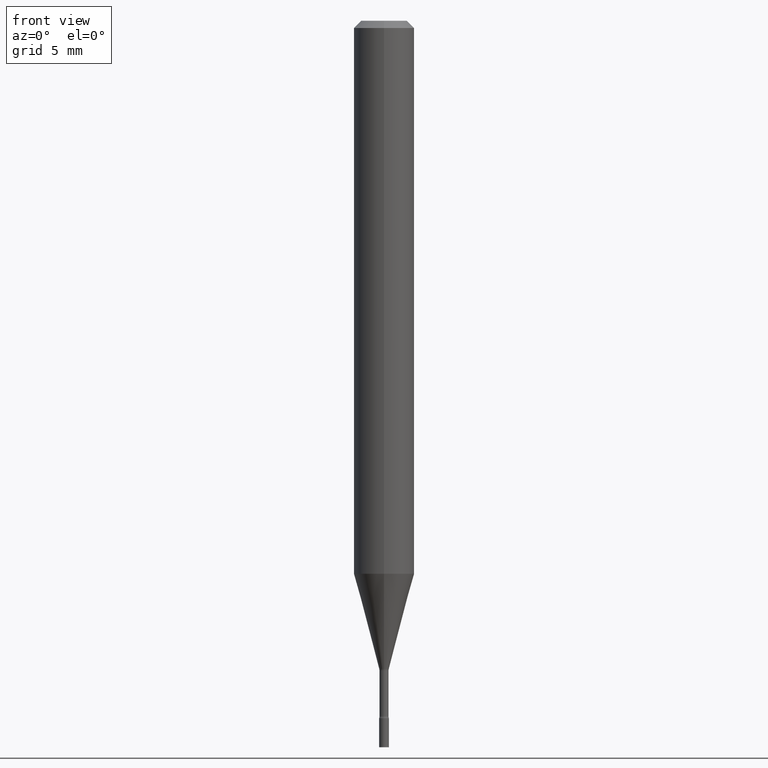
[diagram: clean part render]
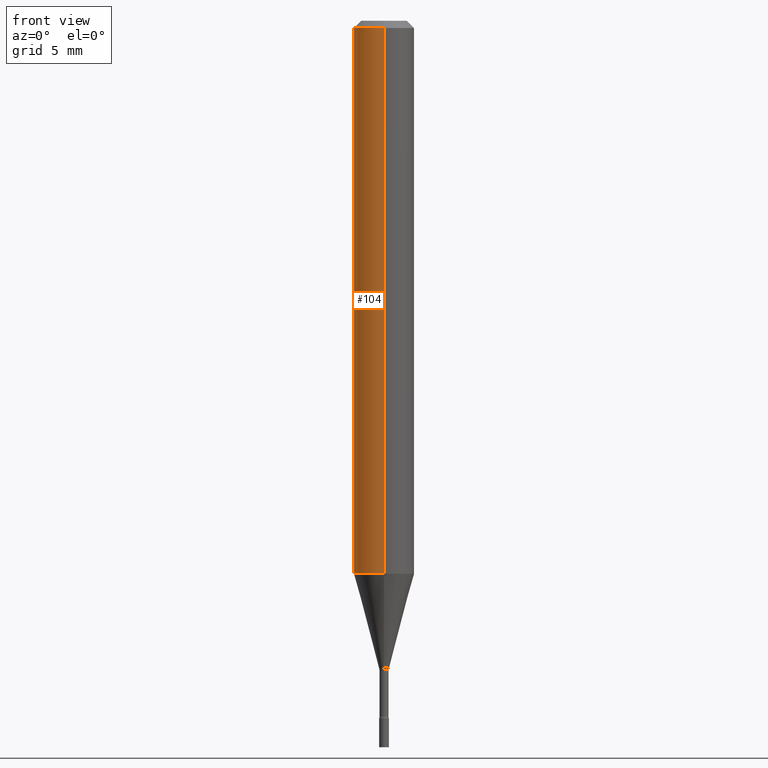
[diagram: same view with one face highlighted and labeled with its STEP entity id]
A machine part, front view. The second image highlights one B-rep face of the part: STEP entity #104.
In plain terms, the highlighted cylindrical surface (edge-blend (fillet) strip) has radius 1.5875 mm, axis along (-0, 0, 1).
Its self-contained STEP definition (entity closure, byte-faithful):
#8 = FACE_OUTER_BOUND ( 'NONE', #53, .T. ) ;
#46 = DIRECTION ( 'NONE',  ( -2.445368209602522272E-29, 3.491625398875051552E-15, 1.000000000000000000 ) ) ;
#50 = ORIENTED_EDGE ( 'NONE', *, *, #491, .T. ) ;
#53 = EDGE_LOOP ( 'NONE', ( #264, #131, #50, #305 ) ) ;
#94 = VERTEX_POINT ( 'NONE', #97 ) ;
#97 = CARTESIAN_POINT ( 'NONE',  ( 4.440892098500906207E-16, 0.06249999999999993755, -0.01500000000000024751 ) ) ;
#104 = ADVANCED_FACE ( 'NONE', ( #8 ), #135, .T. ) ;
#116 = EDGE_CURVE ( 'NONE', #171, #94, #255, .T. ) ;
#130 = DIRECTION ( 'NONE',  ( -6.982962677686265922E-15, -1.000000000000000000, 3.491625398875051552E-15 ) ) ;
#131 = ORIENTED_EDGE ( 'NONE', *, *, #451, .T. ) ;
#135 = CYLINDRICAL_SURFACE ( 'NONE', #209, 0.06250000000000000000 ) ;
#157 = DIRECTION ( 'NONE',  ( -2.445368209602522272E-29, 3.491625398875051552E-15, 1.000000000000000000 ) ) ;
#171 = VERTEX_POINT ( 'NONE', #372 ) ;
#174 = VERTEX_POINT ( 'NONE', #447 ) ;
#205 = CARTESIAN_POINT ( 'NONE',  ( -4.364351673553916201E-16, -0.06250000000000000000, 2.182265874296907220E-16 ) ) ;
#209 = AXIS2_PLACEMENT_3D ( 'NONE', #324, #46, #130 ) ;
#236 = DIRECTION ( 'NONE',  ( -6.982962677686265922E-15, -1.000000000000000000, 3.483106191921935554E-15 ) ) ;
#238 = DIRECTION ( 'NONE',  ( -2.445368209602522272E-29, 3.491625398875051552E-15, 1.000000000000000000 ) ) ;
#255 = LINE ( 'NONE', #330, #423 ) ;
#264 = ORIENTED_EDGE ( 'NONE', *, *, #116, .F. ) ;
#278 = CIRCLE ( 'NONE', #519, 0.06250000000000000000 ) ;
#305 = ORIENTED_EDGE ( 'NONE', *, *, #477, .F. ) ;
#317 = VECTOR ( 'NONE', #238, 39.37007874015748143 ) ;
#324 = CARTESIAN_POINT ( 'NONE',  ( 0.000000000000000000, 0.000000000000000000, 0.000000000000000000 ) ) ;
#325 = CIRCLE ( 'NONE', #400, 0.06250000000000000000 ) ;
#330 = CARTESIAN_POINT ( 'NONE',  ( 4.440892098500625669E-16, 0.06250000000000000000, -2.182265874296907220E-16 ) ) ;
#358 = LINE ( 'NONE', #205, #317 ) ;
#372 = CARTESIAN_POINT ( 'NONE',  ( 4.440892098500904235E-16, 0.06249999999999601014, -1.141828102118093602 ) ) ;
#394 = CARTESIAN_POINT ( 'NONE',  ( -4.364351673553912750E-16, -0.06250000000000005551, -0.01499999999999981209 ) ) ;
#396 = DIRECTION ( 'NONE',  ( -2.445368209602522272E-29, 3.491625398875051552E-15, 1.000000000000000000 ) ) ;
#400 = AXIS2_PLACEMENT_3D ( 'NONE', #474, #396, #236 ) ;
#423 = VECTOR ( 'NONE', #445, 39.37007874015748143 ) ;
#428 = DIRECTION ( 'NONE',  ( -6.982962677686265922E-15, -1.000000000000000000, 4.370956789862821150E-15 ) ) ;
#445 = DIRECTION ( 'NONE',  ( -2.445368209602522272E-29, 3.491625398875051552E-15, 1.000000000000000000 ) ) ;
#447 = CARTESIAN_POINT ( 'NONE',  ( -4.364351673553637635E-16, -0.06250000000000399680, -1.141828102118092936 ) ) ;
#451 = EDGE_CURVE ( 'NONE', #171, #174, #278, .T. ) ;
#474 = CARTESIAN_POINT ( 'NONE',  ( 3.668052314403790151E-31, -5.237438098312587928E-17, -0.01500000000000003067 ) ) ;
#477 = EDGE_CURVE ( 'NONE', #94, #483, #325, .T. ) ;
#483 = VERTEX_POINT ( 'NONE', #394 ) ;
#491 = EDGE_CURVE ( 'NONE', #174, #483, #358, .T. ) ;
#512 = CARTESIAN_POINT ( 'NONE',  ( 2.792190141750367588E-29, -3.986836002504830436E-15, -1.141828102118093380 ) ) ;
#519 = AXIS2_PLACEMENT_3D ( 'NONE', #512, #157, #428 ) ;